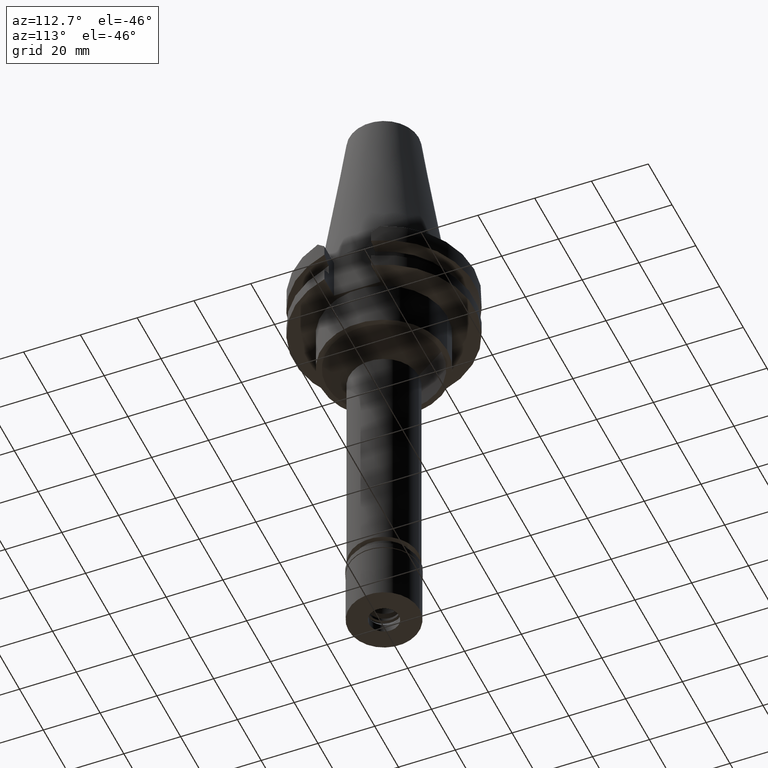
[diagram: clean part render]
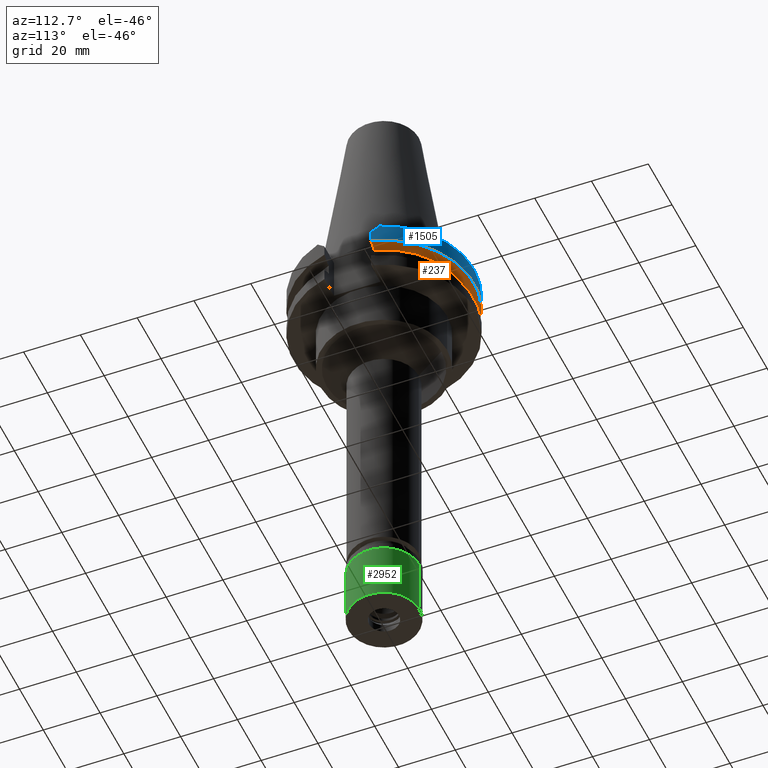
[diagram: same view with three faces highlighted in distinct colors, each labeled with its STEP entity id]
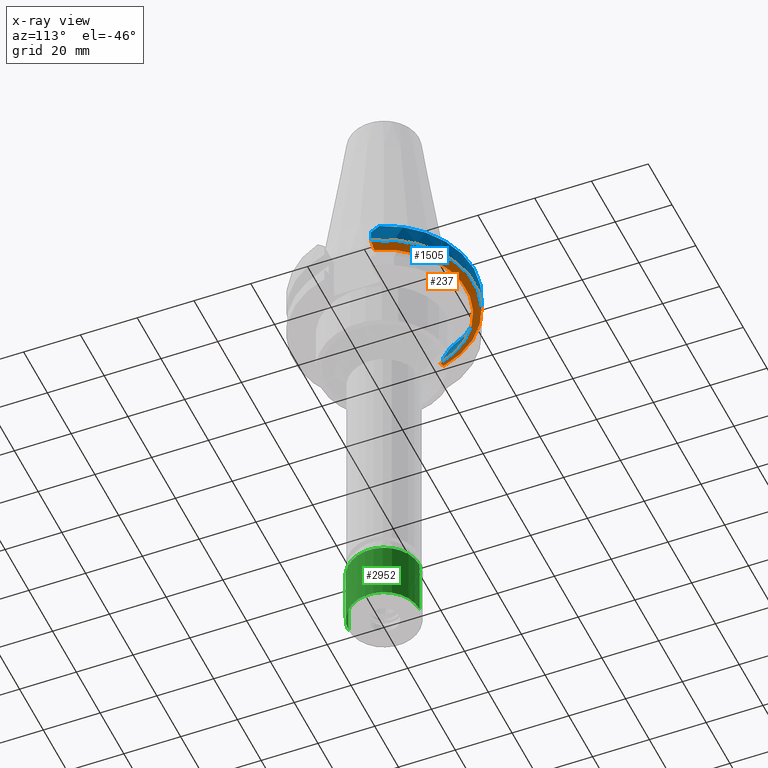
[diagram: x-ray of the same camera — body ghosted, the three highlighted faces saturated]
A machine part, auxiliary view with three faces highlighted in distinct colors.
The next image is the same camera in x-ray (body ghosted, the three faces saturated) — at least one of them is partly hidden behind the body in this view.
Their STEP definitions:

[orange] entity #237 — the highlighted conical surface has half-angle 60 deg.
#162 = CONICAL_SURFACE ( 'NONE', #2036, 30.35901877526999826, 1.047197551196400456 ) ;
#223 = CARTESIAN_POINT ( 'NONE',  ( 0.0000000000000000000, 0.0000000000000000000, -9.207500000002999840 ) ) ;
#237 = ADVANCED_FACE ( 'NONE', ( #757 ), #162, .T. ) ;
#448 = VERTEX_POINT ( 'NONE', #661 ) ;
#495 = DIRECTION ( 'NONE',  ( 0.9661575315241073270, 0.2579527559055020958, 0.0000000000000000000 ) ) ;
#649 = CARTESIAN_POINT ( 'NONE',  ( 29.66936067371914021, 8.189999748690425463, -8.162570072455478609 ) ) ;
#661 = CARTESIAN_POINT ( 'NONE',  ( 30.67550165944999918, 8.189999874299001448, -7.601334354241999769 ) ) ;
#675 = EDGE_LOOP ( 'NONE', ( #1139, #2900, #2962, #2002 ) ) ;
#757 = FACE_OUTER_BOUND ( 'NONE', #675, .T. ) ;
#777 = CARTESIAN_POINT ( 'NONE',  ( -30.67550146399999988, 8.190000606370999137, -7.601327812044000432 ) ) ;
#789 = CARTESIAN_POINT ( 'NONE',  ( -30.67550146399999988, 8.190000606370999137, -7.601327812044000432 ) ) ;
#934 = CIRCLE ( 'NONE', #1569, 31.74999999999998579 ) ;
#977 = DIRECTION ( 'NONE',  ( 0.0000000000000000000, 0.0000000000000000000, 1.000000000000000000 ) ) ;
#1139 = ORIENTED_EDGE ( 'NONE', *, *, #2451, .T. ) ;
#1214 = CARTESIAN_POINT ( 'NONE',  ( 0.0000000000000000000, 0.0000000000000000000, -7.601333230925999551 ) ) ;
#1514 = CARTESIAN_POINT ( 'NONE',  ( -29.66936146498073512, 8.190001212306112777, -8.162569409529828235 ) ) ;
#1569 = AXIS2_PLACEMENT_3D ( 'NONE', #1214, #2531, #495 ) ;
#1780 = CARTESIAN_POINT ( 'NONE',  ( 0.0000000000000000000, 0.0000000000000000000, -8.404416615464000984 ) ) ;
#1830 = DIRECTION ( 'NONE',  ( 0.0000000000000000000, 1.000000000000000000, 0.0000000000000000000 ) ) ;
#1944 = CARTESIAN_POINT ( 'NONE',  ( 28.70626004080565608, 8.189998719102904445, -8.697957594305661289 ) ) ;
#1991 = CARTESIAN_POINT ( 'NONE',  ( -27.78616453792999863, 8.190000190957999138, -9.207500000000999663 ) ) ;
#2002 = ORIENTED_EDGE ( 'NONE', *, *, #2078, .F. ) ;
#2036 = AXIS2_PLACEMENT_3D ( 'NONE', #1780, #3102, #1830 ) ;
#2078 = EDGE_CURVE ( 'NONE', #448, #2841, #934, .T. ) ;
#2212 = EDGE_CURVE ( 'NONE', #3225, #2841, #2701, .T. ) ;
#2451 = EDGE_CURVE ( 'NONE', #448, #2998, #2904, .T. ) ;
#2531 = DIRECTION ( 'NONE',  ( 0.0000000000000000000, 0.0000000000000000000, 1.000000000000000000 ) ) ;
#2632 = EDGE_CURVE ( 'NONE', #2998, #3225, #2989, .T. ) ;
#2669 = CARTESIAN_POINT ( 'NONE',  ( 30.67550165944999918, 8.189999874299001448, -7.601334354241999769 ) ) ;
#2701 = B_SPLINE_CURVE_WITH_KNOTS ( 'NONE', 3,
 ( #1991, #3088, #1514, #777 ),
 .UNSPECIFIED., .F., .F.,
 ( 4, 4 ),
 ( 0.0000000000000000000, 1.000000000000000000 ),
 .UNSPECIFIED. ) ;
#2841 = VERTEX_POINT ( 'NONE', #789 ) ;
#2900 = ORIENTED_EDGE ( 'NONE', *, *, #2632, .T. ) ;
#2904 = B_SPLINE_CURVE_WITH_KNOTS ( 'NONE', 3,
 ( #2669, #649, #1944, #2960 ),
 .UNSPECIFIED., .F., .F.,
 ( 4, 4 ),
 ( 0.0000000000000000000, 1.000000000000000000 ),
 .UNSPECIFIED. ) ;
#2960 = CARTESIAN_POINT ( 'NONE',  ( 27.78617704642999797, 8.189999360257999683, -9.207500000000999663 ) ) ;
#2962 = ORIENTED_EDGE ( 'NONE', *, *, #2212, .T. ) ;
#2989 = CIRCLE ( 'NONE', #3087, 28.96803755052999918 ) ;
#2998 = VERTEX_POINT ( 'NONE', #3254 ) ;
#3007 = CARTESIAN_POINT ( 'NONE',  ( -27.78616453792999863, 8.190000190957999138, -9.207500000000999663 ) ) ;
#3087 = AXIS2_PLACEMENT_3D ( 'NONE', #223, #977, #3332 ) ;
#3088 = CARTESIAN_POINT ( 'NONE',  ( -28.70625673782626208, 8.190000382350438812, -8.697959174450588193 ) ) ;
#3102 = DIRECTION ( 'NONE',  ( 0.0000000000000000000, 0.0000000000000000000, 1.000000000000000000 ) ) ;
#3225 = VERTEX_POINT ( 'NONE', #3007 ) ;
#3254 = CARTESIAN_POINT ( 'NONE',  ( 27.78617704642999797, 8.189999360257999683, -9.207500000000999663 ) ) ;
#3332 = DIRECTION ( 'NONE',  ( 0.0000000000000000000, 1.000000000000000000, 0.0000000000000000000 ) ) ;

[blue] entity #1505 — the highlighted cylindrical surface (partial cylindrical patch) has radius 31.75 mm, axis along (0, 0, -1).
#44 = CARTESIAN_POINT ( 'NONE',  ( -30.67550162588999640, 8.189999999999999503, -3.700000000000000178 ) ) ;
#53 = ORIENTED_EDGE ( 'NONE', *, *, #2078, .T. ) ;
#77 = CARTESIAN_POINT ( 'NONE',  ( -30.14799306409551249, 10.00266721625513888, -1.887332783744861242 ) ) ;
#99 = CARTESIAN_POINT ( 'NONE',  ( 30.67550162588999640, 8.189999999999999503, -3.700000000000000178 ) ) ;
#183 = CARTESIAN_POINT ( 'NONE',  ( 0.0000000000000000000, 0.0000000000000000000, 78.83249999999999602 ) ) ;
#254 = EDGE_CURVE ( 'NONE', #3046, #2154, #3236, .T. ) ;
#378 = EDGE_CURVE ( 'NONE', #3046, #1249, #2906, .T. ) ;
#421 = CYLINDRICAL_SURFACE ( 'NONE', #1860, 31.75000000000000000 ) ;
#431 = AXIS2_PLACEMENT_3D ( 'NONE', #1125, #2138, #1394 ) ;
#437 = DIRECTION ( 'NONE',  ( 0.0000000000000000000, 0.0000000000000000000, -1.000000000000000000 ) ) ;
#448 = VERTEX_POINT ( 'NONE', #661 ) ;
#495 = DIRECTION ( 'NONE',  ( 0.9661575315241073270, 0.2579527559055020958, 0.0000000000000000000 ) ) ;
#622 = CARTESIAN_POINT ( 'NONE',  ( 29.82399034335000110, 10.89000000000000057, -1.000000000001000089 ) ) ;
#661 = CARTESIAN_POINT ( 'NONE',  ( 30.67550165944999918, 8.189999874299001448, -7.601334354241999769 ) ) ;
#789 = CARTESIAN_POINT ( 'NONE',  ( -30.67550146399999988, 8.190000606370999137, -7.601327812044000432 ) ) ;
#807 = LINE ( 'NONE', #2868, #2117 ) ;
#888 = CARTESIAN_POINT ( 'NONE',  ( -30.67550162588999640, 8.189999999999999503, -3.700000000000000178 ) ) ;
#908 = FACE_OUTER_BOUND ( 'NONE', #3015, .T. ) ;
#934 = CIRCLE ( 'NONE', #1569, 31.74999999999998579 ) ;
#958 = EDGE_CURVE ( 'NONE', #2154, #2841, #3206, .T. ) ;
#967 = VECTOR ( 'NONE', #2401, 1000.000000000000227 ) ;
#1113 = DIRECTION ( 'NONE',  ( -8.602505381978995699E-09, 3.222008692314998243E-08, 0.9999999999999994449 ) ) ;
#1125 = CARTESIAN_POINT ( 'NONE',  ( 0.0000000000000000000, 0.0000000000000000000, -1.000000000000000000 ) ) ;
#1214 = CARTESIAN_POINT ( 'NONE',  ( 0.0000000000000000000, 0.0000000000000000000, -7.601333230925999551 ) ) ;
#1249 = VERTEX_POINT ( 'NONE', #622 ) ;
#1394 = DIRECTION ( 'NONE',  ( 0.0000000000000000000, 1.000000000000000000, 0.0000000000000000000 ) ) ;
#1406 = EDGE_CURVE ( 'NONE', #1897, #1249, #1732, .T. ) ;
#1407 = ORIENTED_EDGE ( 'NONE', *, *, #378, .T. ) ;
#1505 = ADVANCED_FACE ( 'NONE', ( #908 ), #421, .T. ) ;
#1569 = AXIS2_PLACEMENT_3D ( 'NONE', #1214, #2531, #495 ) ;
#1570 = ORIENTED_EDGE ( 'NONE', *, *, #958, .F. ) ;
#1593 = CARTESIAN_POINT ( 'NONE',  ( -29.82399034335000110, 10.89000000000000057, -1.000000000000000000 ) ) ;
#1628 = CARTESIAN_POINT ( 'NONE',  ( -29.82399034335000110, 10.89000000000000057, -1.000000000000000000 ) ) ;
#1732 = B_SPLINE_CURVE_WITH_KNOTS ( 'NONE', 3,
 ( #2641, #2385, #2759, #3293 ),
 .UNSPECIFIED., .F., .F.,
 ( 4, 4 ),
 ( 0.0000000000000000000, 1.000000000000000000 ),
 .UNSPECIFIED. ) ;
#1860 = AXIS2_PLACEMENT_3D ( 'NONE', #183, #437, #2185 ) ;
#1897 = VERTEX_POINT ( 'NONE', #99 ) ;
#2078 = EDGE_CURVE ( 'NONE', #448, #2841, #934, .T. ) ;
#2111 = ORIENTED_EDGE ( 'NONE', *, *, #1406, .F. ) ;
#2117 = VECTOR ( 'NONE', #1113, 1000.000000000000114 ) ;
#2138 = DIRECTION ( 'NONE',  ( 0.0000000000000000000, 0.0000000000000000000, -1.000000000000000000 ) ) ;
#2154 = VERTEX_POINT ( 'NONE', #3305 ) ;
#2185 = DIRECTION ( 'NONE',  ( 0.0000000000000000000, -1.000000000000000000, 0.0000000000000000000 ) ) ;
#2378 = EDGE_CURVE ( 'NONE', #448, #1897, #807, .T. ) ;
#2385 = CARTESIAN_POINT ( 'NONE',  ( 30.43183015827552040, 9.102667216255303728, -2.787332783744695064 ) ) ;
#2401 = DIRECTION ( 'NONE',  ( 4.149700359200944730E-08, 1.554267323633979793E-07, -0.9999999999999870104 ) ) ;
#2531 = DIRECTION ( 'NONE',  ( 0.0000000000000000000, 0.0000000000000000000, 1.000000000000000000 ) ) ;
#2563 = CARTESIAN_POINT ( 'NONE',  ( -30.43183015827551330, 9.102667216255303728, -2.787332783744695064 ) ) ;
#2641 = CARTESIAN_POINT ( 'NONE',  ( 30.67550162588999640, 8.189999999999999503, -3.700000000000000178 ) ) ;
#2759 = CARTESIAN_POINT ( 'NONE',  ( 30.14799306409551960, 10.00266721625513888, -1.887332783744861242 ) ) ;
#2841 = VERTEX_POINT ( 'NONE', #789 ) ;
#2868 = CARTESIAN_POINT ( 'NONE',  ( 30.67550165944999918, 8.189999874299001448, -7.601334354241999769 ) ) ;
#2906 = CIRCLE ( 'NONE', #431, 31.75000000000000000 ) ;
#3015 = EDGE_LOOP ( 'NONE', ( #53, #1570, #3201, #1407, #2111, #3296 ) ) ;
#3046 = VERTEX_POINT ( 'NONE', #1628 ) ;
#3201 = ORIENTED_EDGE ( 'NONE', *, *, #254, .F. ) ;
#3206 = LINE ( 'NONE', #888, #967 ) ;
#3236 = B_SPLINE_CURVE_WITH_KNOTS ( 'NONE', 3,
 ( #1593, #77, #2563, #44 ),
 .UNSPECIFIED., .F., .F.,
 ( 4, 4 ),
 ( 0.0000000000000000000, 1.000000000000000000 ),
 .UNSPECIFIED. ) ;
#3293 = CARTESIAN_POINT ( 'NONE',  ( 29.82399034335000110, 10.89000000000000057, -1.000000000001000089 ) ) ;
#3296 = ORIENTED_EDGE ( 'NONE', *, *, #2378, .F. ) ;
#3305 = CARTESIAN_POINT ( 'NONE',  ( -30.67550162588999640, 8.189999999999999503, -3.700000000000000178 ) ) ;

[green] entity #2952 — the highlighted cylindrical surface (partial cylindrical patch) has radius 12.5 mm, axis along (0, 0, -1).
#32 = VERTEX_POINT ( 'NONE', #3315 ) ;
#59 = CARTESIAN_POINT ( 'NONE',  ( 0.0000000000000000000, -12.50000000000000000, -2.100000000000000089 ) ) ;
#68 = ORIENTED_EDGE ( 'NONE', *, *, #3089, .T. ) ;
#239 = ORIENTED_EDGE ( 'NONE', *, *, #1884, .T. ) ;
#242 = VERTEX_POINT ( 'NONE', #1797 ) ;
#280 = CIRCLE ( 'NONE', #395, 12.50000000000000000 ) ;
#330 = DIRECTION ( 'NONE',  ( 0.0000000000000000000, 1.000000000000000000, 0.0000000000000000000 ) ) ;
#395 = AXIS2_PLACEMENT_3D ( 'NONE', #2601, #1855, #330 ) ;
#503 = LINE ( 'NONE', #2558, #536 ) ;
#536 = VECTOR ( 'NONE', #1638, 1000.000000000000000 ) ;
#645 = CARTESIAN_POINT ( 'NONE',  ( 0.0000000000000000000, -12.50000000000000000, -2.100000000000000089 ) ) ;
#680 = LINE ( 'NONE', #645, #2991 ) ;
#727 = AXIS2_PLACEMENT_3D ( 'NONE', #2354, #1127, #897 ) ;
#742 = EDGE_LOOP ( 'NONE', ( #239, #68, #2468, #2675 ) ) ;
#813 = EDGE_CURVE ( 'NONE', #2638, #242, #503, .T. ) ;
#847 = AXIS2_PLACEMENT_3D ( 'NONE', #1996, #1518, #3075 ) ;
#897 = DIRECTION ( 'NONE',  ( 0.0000000000000000000, -1.000000000000000000, 0.0000000000000000000 ) ) ;
#1088 = VERTEX_POINT ( 'NONE', #59 ) ;
#1127 = DIRECTION ( 'NONE',  ( 0.0000000000000000000, 0.0000000000000000000, -1.000000000000000000 ) ) ;
#1518 = DIRECTION ( 'NONE',  ( 0.0000000000000000000, 0.0000000000000000000, 1.000000000000000000 ) ) ;
#1590 = EDGE_CURVE ( 'NONE', #32, #242, #2301, .T. ) ;
#1638 = DIRECTION ( 'NONE',  ( 0.0000000000000000000, 0.0000000000000000000, -1.000000000000000000 ) ) ;
#1797 = CARTESIAN_POINT ( 'NONE',  ( 0.0000000000000000000, 12.50000000000000000, -22.89999999999999858 ) ) ;
#1855 = DIRECTION ( 'NONE',  ( 0.0000000000000000000, 0.0000000000000000000, -1.000000000000000000 ) ) ;
#1884 = EDGE_CURVE ( 'NONE', #2638, #1088, #280, .T. ) ;
#1996 = CARTESIAN_POINT ( 'NONE',  ( 0.0000000000000000000, 0.0000000000000000000, -22.89999999999999858 ) ) ;
#2007 = CARTESIAN_POINT ( 'NONE',  ( 0.0000000000000000000, 12.50000000000000000, -2.100000000000000089 ) ) ;
#2301 = CIRCLE ( 'NONE', #847, 12.50000000000000000 ) ;
#2354 = CARTESIAN_POINT ( 'NONE',  ( 0.0000000000000000000, 0.0000000000000000000, 0.0000000000000000000 ) ) ;
#2409 = DIRECTION ( 'NONE',  ( 0.0000000000000000000, 0.0000000000000000000, -1.000000000000000000 ) ) ;
#2468 = ORIENTED_EDGE ( 'NONE', *, *, #1590, .T. ) ;
#2558 = CARTESIAN_POINT ( 'NONE',  ( 0.0000000000000000000, 12.50000000000000000, -2.100000000000000089 ) ) ;
#2601 = CARTESIAN_POINT ( 'NONE',  ( 0.0000000000000000000, 0.0000000000000000000, -2.100000000000000089 ) ) ;
#2613 = FACE_OUTER_BOUND ( 'NONE', #742, .T. ) ;
#2638 = VERTEX_POINT ( 'NONE', #2007 ) ;
#2675 = ORIENTED_EDGE ( 'NONE', *, *, #813, .F. ) ;
#2952 = ADVANCED_FACE ( 'NONE', ( #2613 ), #3134, .T. ) ;
#2991 = VECTOR ( 'NONE', #2409, 1000.000000000000000 ) ;
#3075 = DIRECTION ( 'NONE',  ( 0.0000000000000000000, -1.000000000000000000, 0.0000000000000000000 ) ) ;
#3089 = EDGE_CURVE ( 'NONE', #1088, #32, #680, .T. ) ;
#3134 = CYLINDRICAL_SURFACE ( 'NONE', #727, 12.50000000000000000 ) ;
#3315 = CARTESIAN_POINT ( 'NONE',  ( 0.0000000000000000000, -12.50000000000000000, -22.89999999999999858 ) ) ;